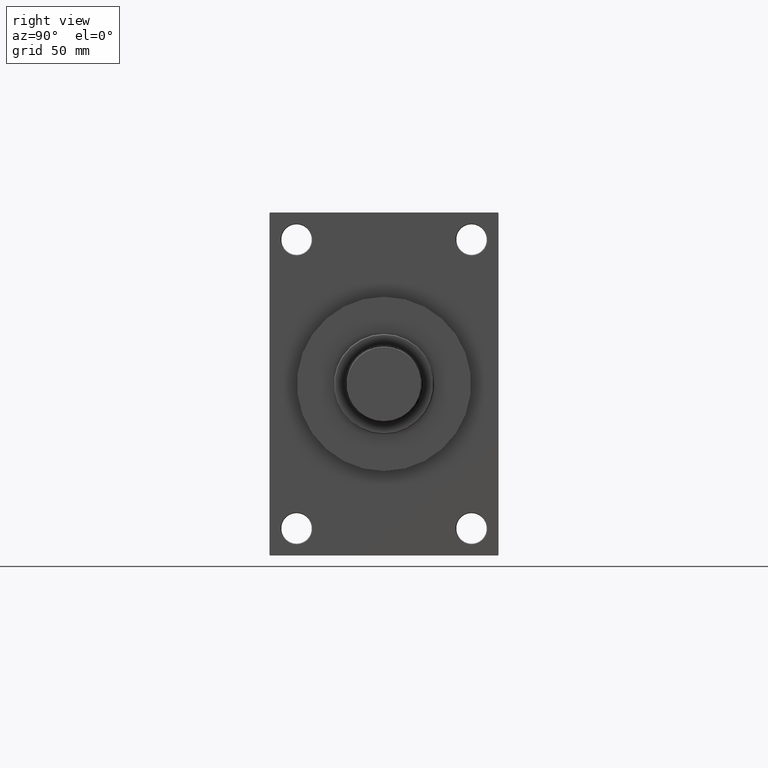
[diagram: clean part render]
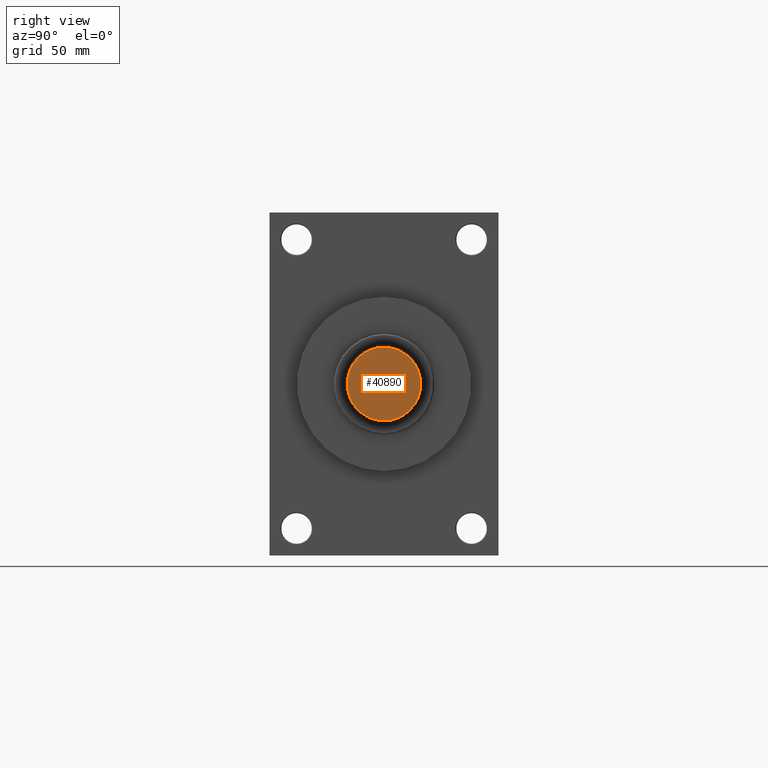
[diagram: same view with one face highlighted and labeled with its STEP entity id]
A machine part, right view. The second image highlights one B-rep face of the part: STEP entity #40890.
In plain terms, the highlighted planar face has unit normal (1, 0, 0).
Its self-contained STEP definition (entity closure, byte-faithful):
#3237 = DIRECTION ( 'NONE',  ( 1.000000000000000000, 0.000000000000000000, -0.000000000000000000 ) ) ;
#4163 = AXIS2_PLACEMENT_3D ( 'NONE', #13949, #25371, #3237 ) ;
#4590 = CARTESIAN_POINT ( 'NONE',  ( -26.50000000000000000, 3.275930187719169552E-15, 0.000000000000000000 ) ) ;
#9221 = CARTESIAN_POINT ( 'NONE',  ( 0.000000000000000000, 0.000000000000000000, 0.000000000000000000 ) ) ;
#10848 = CIRCLE ( 'NONE', #38070, 26.50000000000000000 ) ;
#13949 = CARTESIAN_POINT ( 'NONE',  ( 0.000000000000000000, 0.000000000000000000, 0.000000000000000000 ) ) ;
#13986 = ORIENTED_EDGE ( 'NONE', *, *, #20354, .T. ) ;
#14600 = VERTEX_POINT ( 'NONE', #24377 ) ;
#16525 = DIRECTION ( 'NONE',  ( 1.000000000000000000, 0.000000000000000000, 0.000000000000000000 ) ) ;
#16545 = AXIS2_PLACEMENT_3D ( 'NONE', #31788, #39104, #43012 ) ;
#20077 = EDGE_CURVE ( 'NONE', #14600, #22916, #10848, .T. ) ;
#20354 = EDGE_CURVE ( 'NONE', #22916, #14600, #27412, .T. ) ;
#22916 = VERTEX_POINT ( 'NONE', #4590 ) ;
#24377 = CARTESIAN_POINT ( 'NONE',  ( 26.50000000000000000, 0.000000000000000000, 0.000000000000000000 ) ) ;
#25371 = DIRECTION ( 'NONE',  ( 0.000000000000000000, 0.000000000000000000, 1.000000000000000000 ) ) ;
#27412 = CIRCLE ( 'NONE', #16545, 26.50000000000000000 ) ;
#31788 = CARTESIAN_POINT ( 'NONE',  ( 0.000000000000000000, 0.000000000000000000, 0.000000000000000000 ) ) ;
#32198 = FACE_OUTER_BOUND ( 'NONE', #40979, .T. ) ;
#38070 = AXIS2_PLACEMENT_3D ( 'NONE', #9221, #42365, #16525 ) ;
#39104 = DIRECTION ( 'NONE',  ( 0.000000000000000000, 0.000000000000000000, 1.000000000000000000 ) ) ;
#40890 = ADVANCED_FACE ( 'NONE', ( #32198 ), #48035, .T. ) ;
#40979 = EDGE_LOOP ( 'NONE', ( #46347, #13986 ) ) ;
#42365 = DIRECTION ( 'NONE',  ( 0.000000000000000000, 0.000000000000000000, 1.000000000000000000 ) ) ;
#43012 = DIRECTION ( 'NONE',  ( 1.000000000000000000, 0.000000000000000000, 0.000000000000000000 ) ) ;
#46347 = ORIENTED_EDGE ( 'NONE', *, *, #20077, .T. ) ;
#48035 = PLANE ( 'NONE',  #4163 ) ;